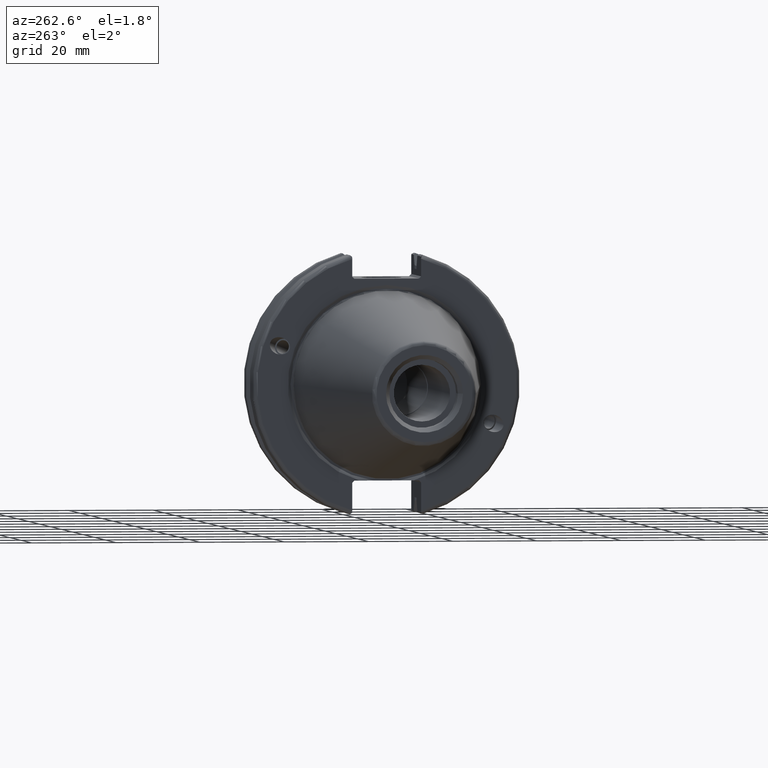
[diagram: clean part render]
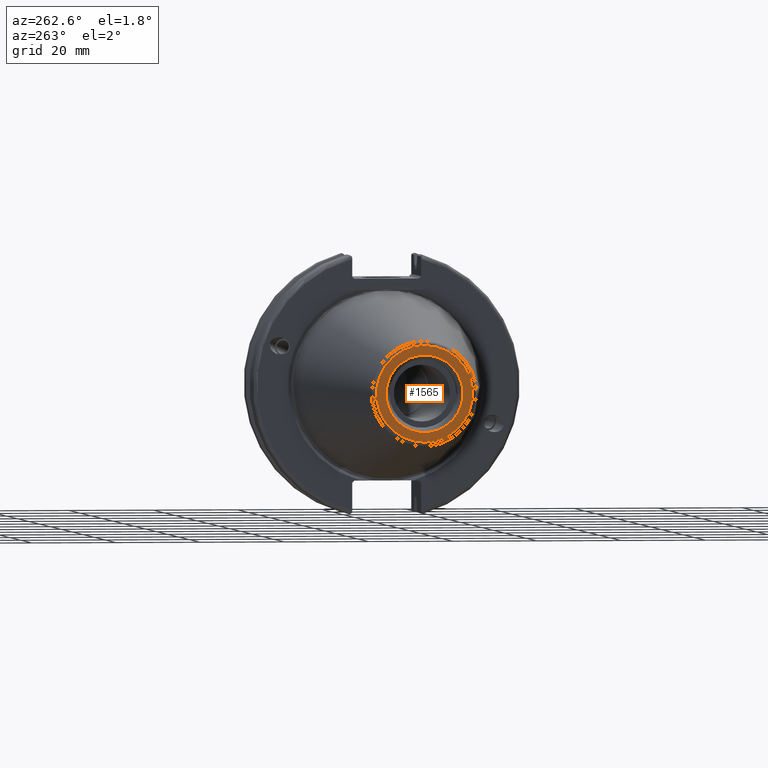
[diagram: same view with one face highlighted and labeled with its STEP entity id]
A machine part, auxiliary view. The second image highlights one B-rep face of the part: STEP entity #1565.
In plain terms, the highlighted planar face has unit normal (-1, 0, 0).
Its self-contained STEP definition (entity closure, byte-faithful):
#326=FACE_BOUND('',#519,.T.);
#348=PLANE('',#1751);
#420=FACE_OUTER_BOUND('',#518,.T.);
#518=EDGE_LOOP('',(#1347));
#519=EDGE_LOOP('',(#1348));
#612=CIRCLE('',#1750,11.4071305970304);
#613=CIRCLE('',#1752,9.15);
#769=VERTEX_POINT('',#2949);
#770=VERTEX_POINT('',#2953);
#980=EDGE_CURVE('',#769,#769,#612,.T.);
#981=EDGE_CURVE('',#770,#770,#613,.T.);
#1347=ORIENTED_EDGE('',*,*,#980,.F.);
#1348=ORIENTED_EDGE('',*,*,#981,.T.);
#1565=ADVANCED_FACE('',(#420,#326),#348,.T.);
#1750=AXIS2_PLACEMENT_3D('',#2951,#2136,#2137);
#1751=AXIS2_PLACEMENT_3D('',#2952,#2138,#2139);
#1752=AXIS2_PLACEMENT_3D('',#2954,#2140,#2141);
#2136=DIRECTION('center_axis',(1.,0.,0.));
#2137=DIRECTION('ref_axis',(0.,-1.,1.83697019872103E-16));
#2138=DIRECTION('center_axis',(-1.,0.,0.));
#2139=DIRECTION('ref_axis',(0.,0.,1.));
#2140=DIRECTION('center_axis',(1.,0.,0.));
#2141=DIRECTION('ref_axis',(0.,0.,-1.));
#2949=CARTESIAN_POINT('',(-68.25,-1.39697059731091E-15,11.4071305970304));
#2951=CARTESIAN_POINT('Origin',(-68.25,0.,0.));
#2952=CARTESIAN_POINT('Origin',(-68.25,12.271875,0.));
#2953=CARTESIAN_POINT('',(-68.25,-9.15,-1.12055182121983E-15));
#2954=CARTESIAN_POINT('Origin',(-68.25,0.,0.));